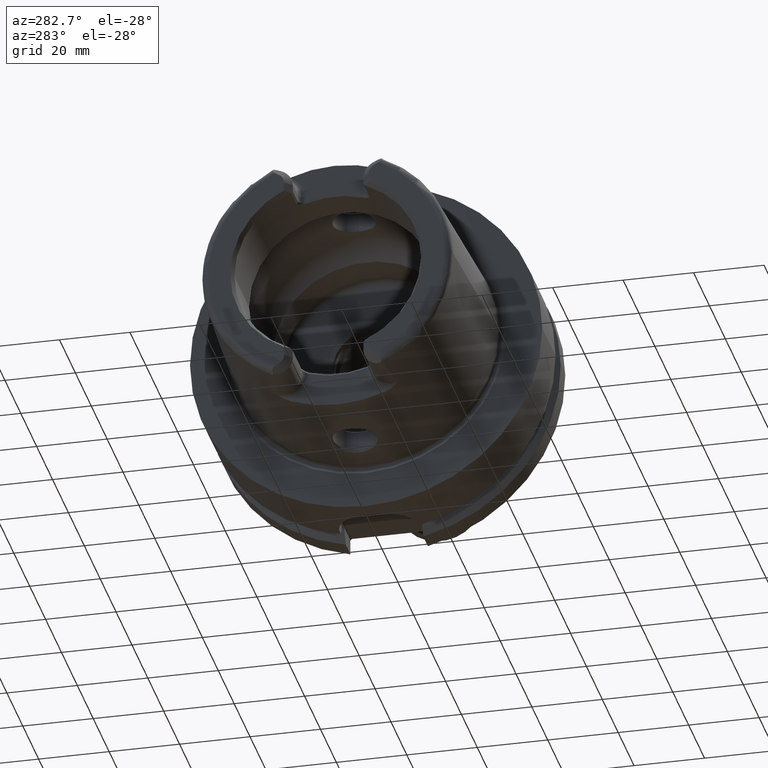
[diagram: clean part render]
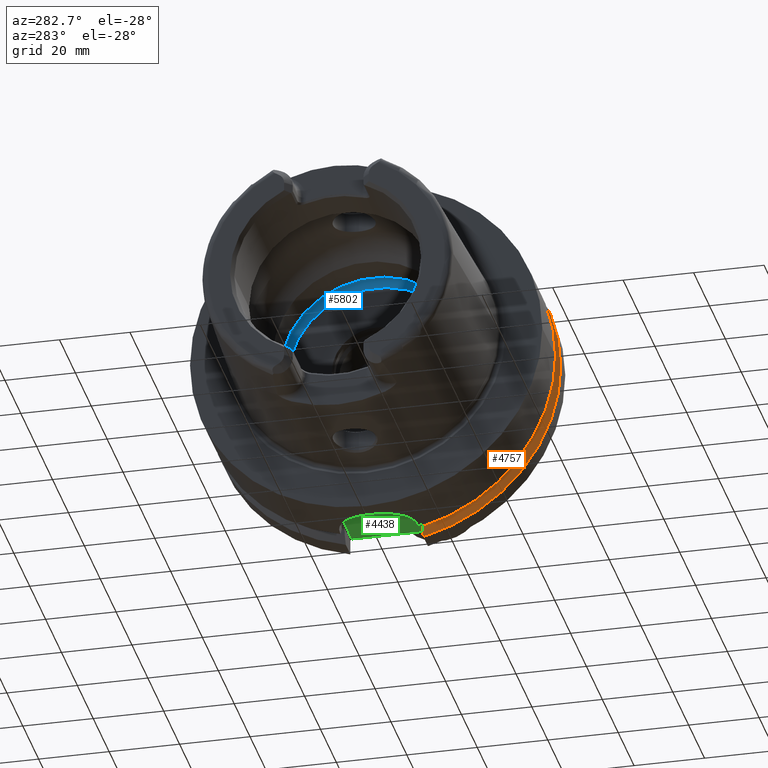
[diagram: same view with three faces highlighted in distinct colors, each labeled with its STEP entity id]
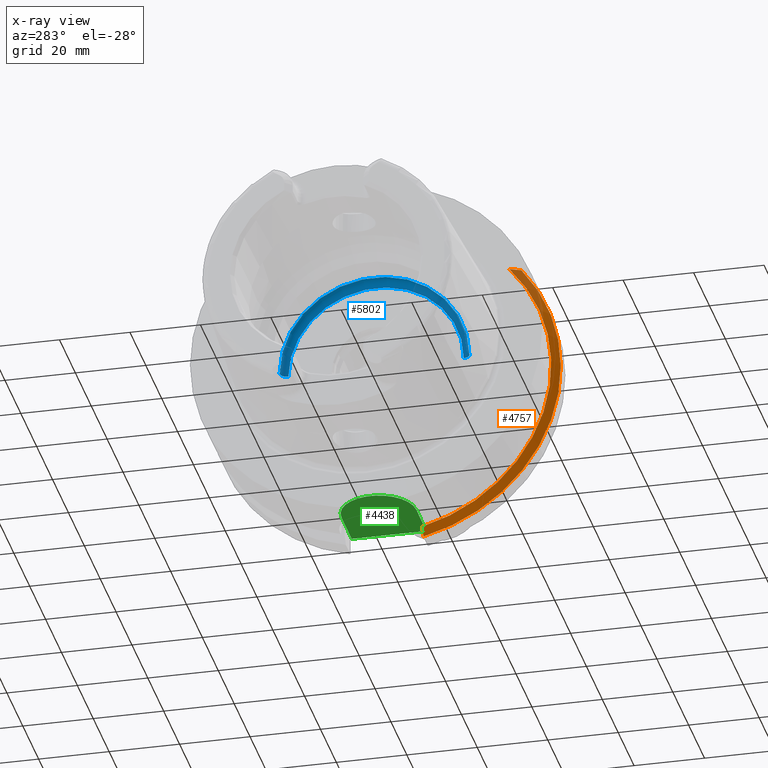
[diagram: x-ray of the same camera — body ghosted, the three highlighted faces saturated]
A machine part, auxiliary view with three faces highlighted in distinct colors.
The next image is the same camera in x-ray (body ghosted, the three faces saturated) — at least one of them is partly hidden behind the body in this view.
Their STEP definitions:

[orange] entity #4757 — the highlighted conical surface has half-angle 60 deg.
#1670=CARTESIAN_POINT('',(2.1875E1,-3.571640491003E1,3.15E1));
#1671=CARTESIAN_POINT('',(2.201925574841E1,-3.604955434192E1,3.15E1));
#1672=CARTESIAN_POINT('',(2.231322476087E1,-3.672437326077E1,3.15E1));
#1673=CARTESIAN_POINT('',(2.277010201186E1,-3.776083400964E1,3.15E1));
#1674=CARTESIAN_POINT('',(2.308650936123E1,-3.847048452534E1,3.15E1));
#1675=CARTESIAN_POINT('',(2.324759526419E1,-3.882975663071E1,3.15E1));
#1677=CARTESIAN_POINT('',(2.324759526419E1,0.E0,0.E0));
#1678=DIRECTION('',(1.E0,0.E0,0.E0));
#1679=DIRECTION('',(0.E0,-7.765951326142E-1,6.3E-1));
#1680=AXIS2_PLACEMENT_3D('',#1677,#1678,#1679);
#1682=CARTESIAN_POINT('',(2.1875E1,-1.1E1,-4.633477721644E1));
#1683=CARTESIAN_POINT('',(2.202318700409E1,-1.1E1,-4.659857839127E1));
#1684=CARTESIAN_POINT('',(2.232244181881E1,-1.1E1,-4.713106867413E1));
#1685=CARTESIAN_POINT('',(2.277988963764E1,-1.1E1,-4.794432689775E1));
#1686=CARTESIAN_POINT('',(2.309072380685E1,-1.1E1,-4.849646015371E1));
#1687=CARTESIAN_POINT('',(2.324759526419E1,-1.1E1,-4.877499359303E1));
#1689=CARTESIAN_POINT('',(2.1875E1,0.E0,0.E0));
#1690=DIRECTION('',(-1.E0,0.E0,0.E0));
#1691=DIRECTION('',(0.E0,-2.309827916554E-1,-9.729578356533E-1));
#1692=AXIS2_PLACEMENT_3D('',#1689,#1690,#1691);
#3006=CARTESIAN_POINT('',(2.324759526419E1,-1.1E1,-4.877499359303E1));
#3008=VERTEX_POINT('',#3006);
#3028=CARTESIAN_POINT('',(2.1875E1,-1.1E1,-4.633477721644E1));
#3029=VERTEX_POINT('',#3028);
#3056=CARTESIAN_POINT('',(2.324759526419E1,-3.882975663071E1,3.15E1));
#3058=VERTEX_POINT('',#3056);
#3080=CARTESIAN_POINT('',(2.1875E1,-3.571640491003E1,3.15E1));
#3081=VERTEX_POINT('',#3080);
#4746=CARTESIAN_POINT('',(2.256129763210E1,0.E0,0.E0));
#4747=DIRECTION('',(1.E0,0.E0,0.E0));
#4748=DIRECTION('',(0.E0,-1.E0,0.E0));
#4749=AXIS2_PLACEMENT_3D('',#4746,#4747,#4748);
#4750=CONICAL_SURFACE('',#4749,4.881129763210E1,6.E1);
#4751=ORIENTED_EDGE('',*,*,#4266,.T.);
#4752=ORIENTED_EDGE('',*,*,#4309,.T.);
#4753=ORIENTED_EDGE('',*,*,#4460,.F.);
#4754=ORIENTED_EDGE('',*,*,#4711,.T.);
#4755=EDGE_LOOP('',(#4751,#4752,#4753,#4754));
#4756=FACE_OUTER_BOUND('',#4755,.F.);
#4757=ADVANCED_FACE('',(#4756),#4750,.T.);
#1676=B_SPLINE_CURVE_WITH_KNOTS('',3,(#1670,#1671,#1672,#1673,#1674,#1675),
.UNSPECIFIED.,.F.,.F.,(4,1,1,4),(0.E0,3.333333333333E-1,6.666666666667E-1,1.E0),
.UNSPECIFIED.);
#1681=CIRCLE('',#1680,5.E1);
#1688=B_SPLINE_CURVE_WITH_KNOTS('',3,(#1682,#1683,#1684,#1685,#1686,#1687),
.UNSPECIFIED.,.F.,.F.,(4,1,1,4),(0.E0,3.333333333333E-1,6.666666666667E-1,1.E0),
.UNSPECIFIED.);
#1693=CIRCLE('',#1692,4.762259526419E1);
#4266=EDGE_CURVE('',#3081,#3058,#1676,.T.);
#4309=EDGE_CURVE('',#3058,#3008,#1681,.T.);
#4460=EDGE_CURVE('',#3029,#3008,#1688,.T.);
#4711=EDGE_CURVE('',#3029,#3081,#1693,.T.);

[blue] entity #5802 — the highlighted toroidal blend (fillet) surface has major radius 24.9 mm and minor (blend) radius 2 mm.
#2255=CARTESIAN_POINT('',(9.3E0,0.E0,0.E0));
#2256=DIRECTION('',(1.E0,0.E0,0.E0));
#2257=DIRECTION('',(0.E0,1.E0,0.E0));
#2258=AXIS2_PLACEMENT_3D('',#2255,#2256,#2257);
#2260=CARTESIAN_POINT('',(1.25E1,0.E0,0.E0));
#2261=DIRECTION('',(1.E0,0.E0,0.E0));
#2262=DIRECTION('',(0.E0,1.E0,0.E0));
#2263=AXIS2_PLACEMENT_3D('',#2260,#2261,#2262);
#2265=CARTESIAN_POINT('',(1.05E1,2.49E1,0.E0));
#2266=DIRECTION('',(0.E0,0.E0,1.E0));
#2267=DIRECTION('',(1.E0,0.E0,0.E0));
#2268=AXIS2_PLACEMENT_3D('',#2265,#2266,#2267);
#2275=CARTESIAN_POINT('',(1.05E1,-2.49E1,0.E0));
#2276=DIRECTION('',(0.E0,0.E0,-1.E0));
#2277=DIRECTION('',(1.E0,0.E0,0.E0));
#2278=AXIS2_PLACEMENT_3D('',#2275,#2276,#2277);
#2725=CARTESIAN_POINT('',(1.25E1,2.49E1,0.E0));
#2726=CARTESIAN_POINT('',(9.3E0,2.65E1,0.E0));
#2727=VERTEX_POINT('',#2725);
#2728=VERTEX_POINT('',#2726);
#2729=CARTESIAN_POINT('',(1.25E1,-2.49E1,0.E0));
#2730=CARTESIAN_POINT('',(9.3E0,-2.65E1,0.E0));
#2731=VERTEX_POINT('',#2729);
#2732=VERTEX_POINT('',#2730);
#5788=CARTESIAN_POINT('',(1.05E1,0.E0,0.E0));
#5789=DIRECTION('',(1.E0,0.E0,0.E0));
#5790=DIRECTION('',(0.E0,-1.E0,0.E0));
#5791=AXIS2_PLACEMENT_3D('',#5788,#5789,#5790);
#5792=TOROIDAL_SURFACE('',#5791,2.49E1,2.E0);
#5794=ORIENTED_EDGE('',*,*,#5793,.T.);
#5795=ORIENTED_EDGE('',*,*,#5783,.T.);
#5797=ORIENTED_EDGE('',*,*,#5796,.F.);
#5799=ORIENTED_EDGE('',*,*,#5798,.F.);
#5800=EDGE_LOOP('',(#5794,#5795,#5797,#5799));
#5801=FACE_OUTER_BOUND('',#5800,.F.);
#5802=ADVANCED_FACE('',(#5801),#5792,.F.);
#2259=CIRCLE('',#2258,2.65E1);
#2264=CIRCLE('',#2263,2.49E1);
#2269=CIRCLE('',#2268,2.E0);
#2279=CIRCLE('',#2278,2.E0);
#5783=EDGE_CURVE('',#2728,#2732,#2259,.T.);
#5793=EDGE_CURVE('',#2727,#2728,#2269,.T.);
#5796=EDGE_CURVE('',#2731,#2732,#2279,.T.);
#5798=EDGE_CURVE('',#2727,#2731,#2264,.T.);

[green] entity #4438 — the highlighted planar face has unit normal (0, 0, -1).
#1083=DIRECTION('',(0.E0,-1.E0,0.E0));
#1084=VECTOR('',#1083,2.12E1);
#1085=CARTESIAN_POINT('',(2.9E1,1.06E1,-4.4E1));
#1086=LINE('',#1085,#1084);
#1267=DIRECTION('',(1.E0,3.248915666844E-10,-3.259565609311E-10));
#1268=VECTOR('',#1267,1.299999999828E1);
#1269=CARTESIAN_POINT('',(1.600000000172E1,-1.060000000422E1,
-4.399999999576E1));
#1270=LINE('',#1269,#1268);
#1271=DIRECTION('',(-1.E0,3.244620982657E-10,3.263850728660E-10));
#1272=VECTOR('',#1271,1.299999999796E1);
#1273=CARTESIAN_POINT('',(2.9E1,1.06E1,-4.4E1));
#1274=LINE('',#1273,#1272);
#1275=CARTESIAN_POINT('',(1.6E1,0.E0,-4.399999965713E1));
#1276=DIRECTION('',(0.E0,0.E0,1.E0));
#1277=DIRECTION('',(0.E0,1.E0,0.E0));
#1278=AXIS2_PLACEMENT_3D('',#1275,#1276,#1277);
#2954=CARTESIAN_POINT('',(2.9E1,1.06E1,-4.4E1));
#2956=VERTEX_POINT('',#2954);
#2959=CARTESIAN_POINT('',(2.9E1,-1.06E1,-4.4E1));
#2961=VERTEX_POINT('',#2959);
#3034=CARTESIAN_POINT('',(1.600000000172E1,-1.060000000422E1,
-4.399999999576E1));
#3035=VERTEX_POINT('',#3034);
#3040=CARTESIAN_POINT('',(1.600000000204E1,1.060000000422E1,-4.399999999576E1));
#3041=VERTEX_POINT('',#3040);
#4427=CARTESIAN_POINT('',(0.E0,0.E0,-4.4E1));
#4428=DIRECTION('',(0.E0,0.E0,-1.E0));
#4429=DIRECTION('',(1.E0,0.E0,0.E0));
#4430=AXIS2_PLACEMENT_3D('',#4427,#4428,#4429);
#4431=PLANE('',#4430);
#4432=ORIENTED_EDGE('',*,*,#4419,.T.);
#4433=ORIENTED_EDGE('',*,*,#4240,.F.);
#4434=ORIENTED_EDGE('',*,*,#4393,.T.);
#4435=ORIENTED_EDGE('',*,*,#4405,.T.);
#4436=EDGE_LOOP('',(#4432,#4433,#4434,#4435));
#4437=FACE_OUTER_BOUND('',#4436,.F.);
#4438=ADVANCED_FACE('',(#4437),#4431,.T.);
#1279=CIRCLE('',#1278,1.059999968251E1);
#4240=EDGE_CURVE('',#2956,#2961,#1086,.T.);
#4393=EDGE_CURVE('',#2956,#3041,#1274,.T.);
#4405=EDGE_CURVE('',#3041,#3035,#1279,.T.);
#4419=EDGE_CURVE('',#3035,#2961,#1270,.T.);